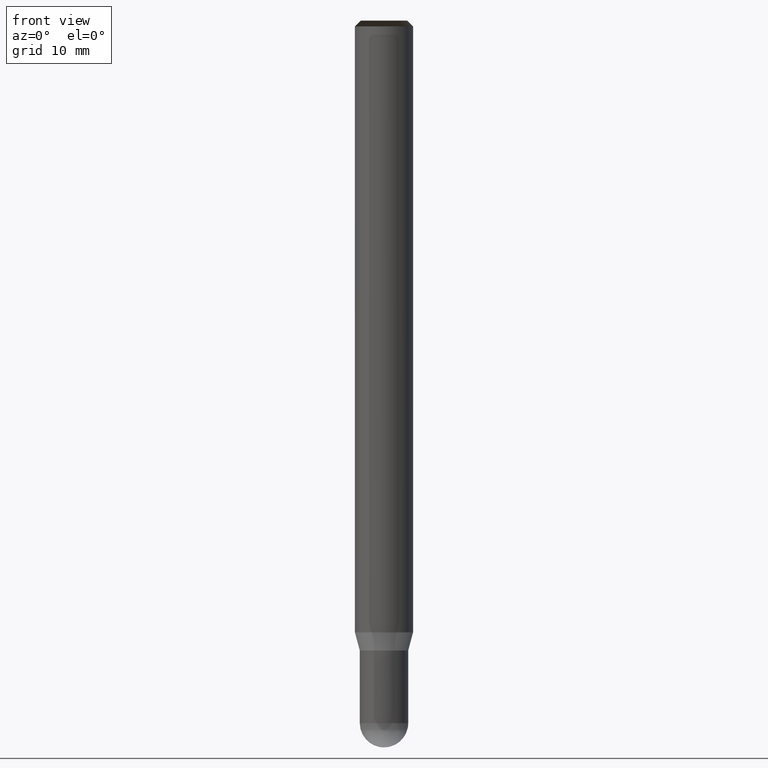
[diagram: clean part render]
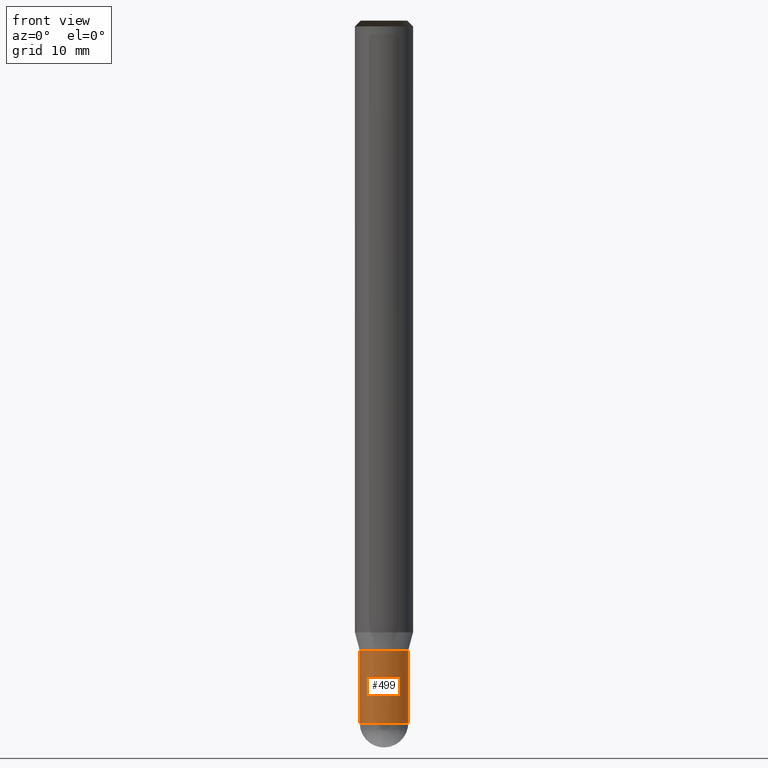
[diagram: same view with one face highlighted and labeled with its STEP entity id]
A machine part, front view. The second image highlights one B-rep face of the part: STEP entity #499.
In plain terms, the highlighted face is a freeform B-spline surface patch.
Its self-contained STEP definition (entity closure, byte-faithful):
#354=CARTESIAN_POINT('',(2.5,0.0,-9.367));
#358=CARTESIAN_POINT('',(-2.5,0.0,-9.367));
#359=CARTESIAN_POINT('',(2.5,0.0,-1.867));
#363=CARTESIAN_POINT('',(-2.5,0.0,-1.867));
#368=CARTESIAN_POINT('',(-2.5,-2.5,-9.367));
#369=CARTESIAN_POINT('',(0.0,-2.5,-9.367));
#370=CARTESIAN_POINT('',(2.5,-2.5,-9.367));
#371=CARTESIAN_POINT('',(-2.5,-2.5,-1.867));
#372=CARTESIAN_POINT('',(0.0,-2.5,-1.867));
#373=CARTESIAN_POINT('',(2.5,-2.5,-1.867));
#480=(
BOUNDED_SURFACE()
B_SPLINE_SURFACE(1,2,(
(#358,#368,#369,#370,#354),
(#363,#371,#372,#373,#359)
), .UNSPECIFIED.,.F.,.F.,.F.)
B_SPLINE_SURFACE_WITH_KNOTS((2,2),(3,2,3),(
0.0,1.0),(
0.0,0.5,1.0), .UNSPECIFIED.)
GEOMETRIC_REPRESENTATION_ITEM()
RATIONAL_B_SPLINE_SURFACE(((1.0,0.707106781187,1.0,0.707106781187,1.0),
(1.0,0.707106781187,1.0,0.707106781187,1.0)
))
REPRESENTATION_ITEM('')
SURFACE()
);
#481=(
BOUNDED_CURVE()
B_SPLINE_CURVE(1,(#363,#358),.UNSPECIFIED.,.F.,.F.)
B_SPLINE_CURVE_WITH_KNOTS((2,2),
(0.0,1.0),.UNSPECIFIED.)
CURVE()
GEOMETRIC_REPRESENTATION_ITEM()
RATIONAL_B_SPLINE_CURVE((1.0,1.0))
REPRESENTATION_ITEM('')
);
#482=(
BOUNDED_CURVE()
B_SPLINE_CURVE(2,(#358,#368,#369,#370,#354),.UNSPECIFIED.,.F.,.F.)
B_SPLINE_CURVE_WITH_KNOTS((3,2,3),
(0.0,0.5,1.0),.UNSPECIFIED.)
CURVE()
GEOMETRIC_REPRESENTATION_ITEM()
RATIONAL_B_SPLINE_CURVE((1.0,0.707106781187,1.0,0.707106781187,1.0))
REPRESENTATION_ITEM('')
);
#483=(
BOUNDED_CURVE()
B_SPLINE_CURVE(1,(#354,#359),.UNSPECIFIED.,.F.,.F.)
B_SPLINE_CURVE_WITH_KNOTS((2,2),
(0.0,1.0),.UNSPECIFIED.)
CURVE()
GEOMETRIC_REPRESENTATION_ITEM()
RATIONAL_B_SPLINE_CURVE((1.0,1.0))
REPRESENTATION_ITEM('')
);
#484=(
BOUNDED_CURVE()
B_SPLINE_CURVE(2,(#359,#373,#372,#371,#363),.UNSPECIFIED.,.F.,.F.)
B_SPLINE_CURVE_WITH_KNOTS((3,2,3),
(0.0,0.5,1.0),.UNSPECIFIED.)
CURVE()
GEOMETRIC_REPRESENTATION_ITEM()
RATIONAL_B_SPLINE_CURVE((1.0,0.707106781187,1.0,0.707106781187,1.0))
REPRESENTATION_ITEM('')
);
#485=VERTEX_POINT('',#354);
#486=VERTEX_POINT('',#358);
#487=VERTEX_POINT('',#359);
#488=VERTEX_POINT('',#363);
#489=EDGE_CURVE('',#488,#486,#481,.T.);
#490=EDGE_CURVE('',#486,#485,#482,.T.);
#491=EDGE_CURVE('',#485,#487,#483,.T.);
#492=EDGE_CURVE('',#487,#488,#484,.T.);
#493=ORIENTED_EDGE('',*,*,#489,.T.);
#494=ORIENTED_EDGE('',*,*,#490,.T.);
#495=ORIENTED_EDGE('',*,*,#491,.T.);
#496=ORIENTED_EDGE('',*,*,#492,.T.);
#497=EDGE_LOOP('',(#493,#494,#495,#496));
#498=FACE_OUTER_BOUND('',#497,.T.);
#499=ADVANCED_FACE('',(#498),#480,.T.);